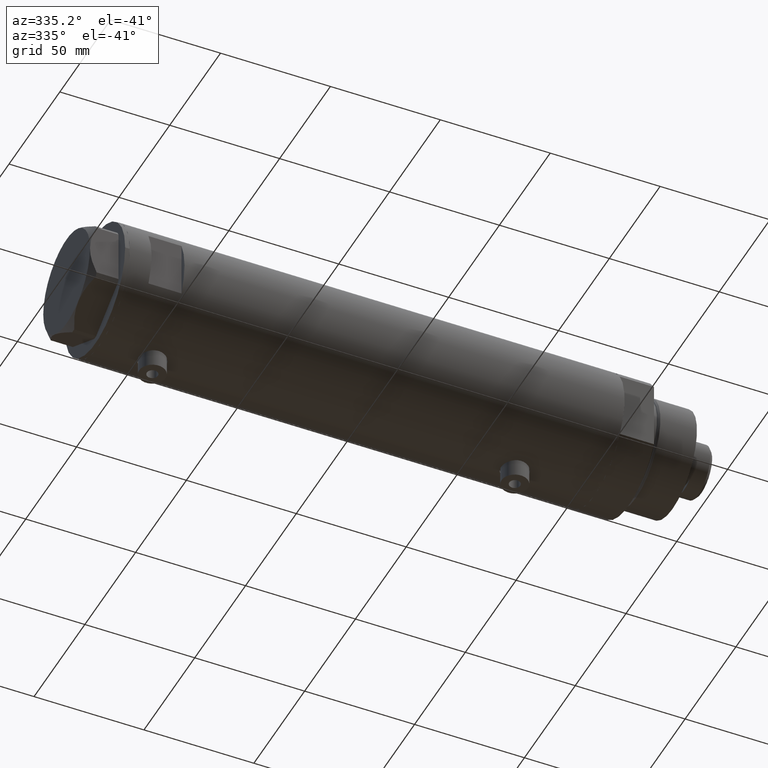
[diagram: clean part render]
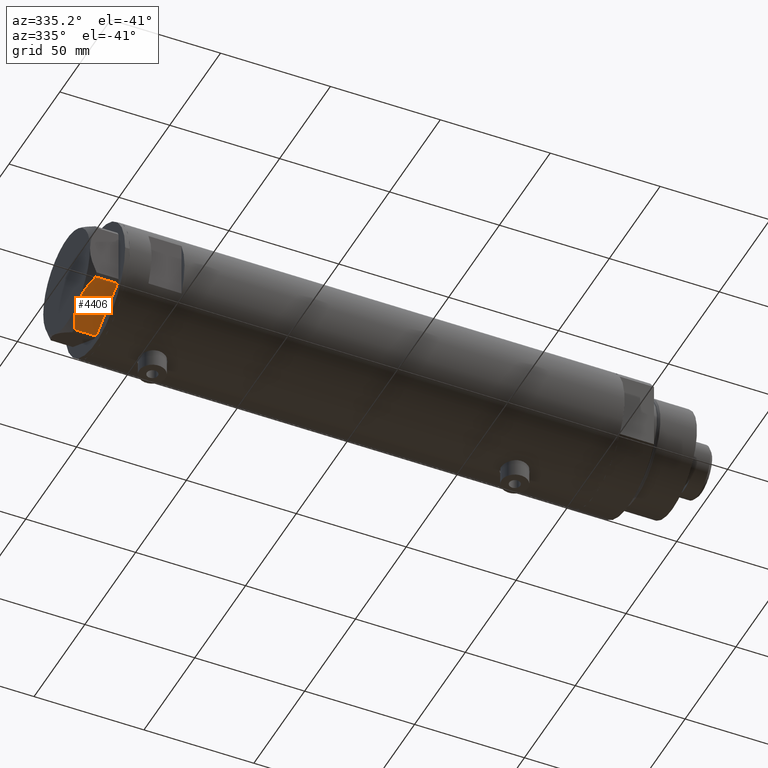
[diagram: same view with one face highlighted and labeled with its STEP entity id]
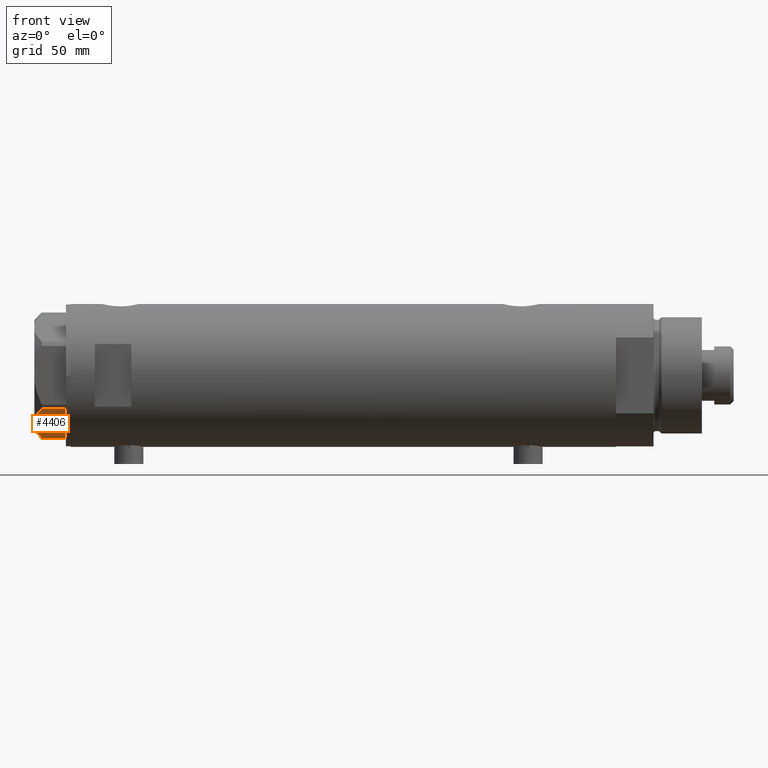
[diagram: same view with one face highlighted and labeled with its STEP entity id]
A machine part, auxiliary view. The second image highlights one B-rep face of the part: STEP entity #4406.
A second angle (front view) of the same face is appended — the face is thin or edge-on in the first view.
In plain terms, the highlighted planar face has unit normal (0, 0.5, 0.866).
Its self-contained STEP definition (entity closure, byte-faithful):
#49 = VECTOR ( 'NONE', #4097, 1000.000000000000227 ) ;
#185 = EDGE_CURVE ( 'NONE', #345, #1494, #1700, .T. ) ;
#214 = CARTESIAN_POINT ( 'NONE',  ( -21.20080365460317751, 14.31782268570117367, 10.43131750950939818 ) ) ;
#289 = CARTESIAN_POINT ( 'NONE',  ( -11.50000000000004441, 19.91858428704211548, 13.00000000000000000 ) ) ;
#345 = VERTEX_POINT ( 'NONE', #1079 ) ;
#451 = CARTESIAN_POINT ( 'NONE',  ( -6.946777556903628970, 22.54738849024396075, 12.42689993760377831 ) ) ;
#653 = PLANE ( 'NONE',  #1686 ) ;
#757 = ORIENTED_EDGE ( 'NONE', *, *, #185, .T. ) ;
#798 = VECTOR ( 'NONE', #4640, 1000.000000000000000 ) ;
#992 = FACE_OUTER_BOUND ( 'NONE', #1090, .T. ) ;
#1079 = CARTESIAN_POINT ( 'NONE',  ( -0.9699484522384476115, 25.99811238272281599, 9.983800287807556018 ) ) ;
#1090 = EDGE_LOOP ( 'NONE', ( #2803, #1878, #4092, #4113, #757 ) ) ;
#1107 = CARTESIAN_POINT ( 'NONE',  ( -10.58093321976963175, 20.44920774001128194, 12.98168640760950510 ) ) ;
#1331 = DIRECTION ( 'NONE',  ( 0.000000000000000000, 0.000000000000000000, 1.000000000000000000 ) ) ;
#1358 = CARTESIAN_POINT ( 'NONE',  ( -15.11535457301031649, 17.83125835109857249, 12.70765172847700519 ) ) ;
#1436 = DIRECTION ( 'NONE',  ( 0.5000000000000008882, -0.8660254037844381525, 0.000000000000000000 ) ) ;
#1452 = VERTEX_POINT ( 'NONE', #3711 ) ;
#1475 = B_SPLINE_CURVE_WITH_KNOTS ( 'NONE', 3,
 ( #1912, #3759, #1483, #451, #1936, #3393, #2577, #1107, #4441, #4053 ),
 .UNSPECIFIED., .F., .F.,
 ( 4, 2, 2, 2, 4 ),
 ( 0.001228959670438532553, 0.007497079744270828371, 0.01063113978118697921, 0.01219816979964505159, 0.01376519981810312397 ),
 .UNSPECIFIED. ) ;
#1483 = CARTESIAN_POINT ( 'NONE',  ( -4.320186229909891651, 24.06385169993495055, 11.62937486882611005 ) ) ;
#1494 = VERTEX_POINT ( 'NONE', #3303 ) ;
#1586 = LINE ( 'NONE', #2616, #49 ) ;
#1686 = AXIS2_PLACEMENT_3D ( 'NONE', #3213, #1436, #4637 ) ;
#1700 = LINE ( 'NONE', #3164, #798 ) ;
#1710 = B_SPLINE_CURVE_WITH_KNOTS ( 'NONE', 3,
 ( #3263, #2462, #1358, #2178, #2821, #4740, #4350, #3961, #214, #3937 ),
 .UNSPECIFIED., .F., .F.,
 ( 4, 2, 2, 2, 4 ),
 ( 0.01376519981810312397, 0.01998941321701587850, 0.02154546656674406757, 0.02310151991647225664, 0.02621362661592864171 ),
 .UNSPECIFIED. ) ;
#1845 = VECTOR ( 'NONE', #1331, 1000.000000000000000 ) ;
#1878 = ORIENTED_EDGE ( 'NONE', *, *, #3342, .T. ) ;
#1912 = CARTESIAN_POINT ( 'NONE',  ( -0.9699484522384476115, 25.99811238272281599, 9.983800287807556018 ) ) ;
#1936 = CARTESIAN_POINT ( 'NONE',  ( -7.836767740116584058, 22.03355241838984924, 12.63731396715694899 ) ) ;
#2178 = CARTESIAN_POINT ( 'NONE',  ( -17.32831362639716843, 16.55360584592005679, 12.04068176582934235 ) ) ;
#2462 = CARTESIAN_POINT ( 'NONE',  ( -13.32175508098984018, 18.86679350063497296, 13.00000000000009237 ) ) ;
#2577 = CARTESIAN_POINT ( 'NONE',  ( -9.656518383329851574, 20.98291889467267879, 12.90784227772844162 ) ) ;
#2616 = CARTESIAN_POINT ( 'NONE',  ( 0.000000000000000000, 26.55811238272274366, 0.000000000000000000 ) ) ;
#2649 = EDGE_CURVE ( 'NONE', #345, #3411, #1475, .T. ) ;
#2803 = ORIENTED_EDGE ( 'NONE', *, *, #3482, .T. ) ;
#2821 = CARTESIAN_POINT ( 'NONE',  ( -17.77001848220189828, 16.29858742851882525, 11.89212886775844424 ) ) ;
#3164 = CARTESIAN_POINT ( 'NONE',  ( -0.9699484522385897201, 25.99811238272273073, 13.00000000000000000 ) ) ;
#3213 = CARTESIAN_POINT ( 'NONE',  ( 0.000000000000000000, 26.55811238272274366, 13.00000000000000000 ) ) ;
#3263 = CARTESIAN_POINT ( 'NONE',  ( -11.50000000000004441, 19.91858428704211548, 13.00000000000000000 ) ) ;
#3303 = CARTESIAN_POINT ( 'NONE',  ( -0.9699484522385893870, 25.99811238272273073, 0.000000000000000000 ) ) ;
#3342 = EDGE_CURVE ( 'NONE', #1452, #3500, #3987, .T. ) ;
#3393 = CARTESIAN_POINT ( 'NONE',  ( -9.197898616902921987, 21.24770314027493612, 12.85271263895580596 ) ) ;
#3411 = VERTEX_POINT ( 'NONE', #289 ) ;
#3482 = EDGE_CURVE ( 'NONE', #1494, #1452, #1586, .T. ) ;
#3500 = VERTEX_POINT ( 'NONE', #4530 ) ;
#3547 = CARTESIAN_POINT ( 'NONE',  ( -22.03005154776142049, 13.83905619136132614, 13.00000000000000000 ) ) ;
#3711 = CARTESIAN_POINT ( 'NONE',  ( -22.03005154776141339, 13.83905619136132792, 0.000000000000000000 ) ) ;
#3759 = CARTESIAN_POINT ( 'NONE',  ( -2.626494320835643048, 25.04170517956326236, 10.87778242614345814 ) ) ;
#3937 = CARTESIAN_POINT ( 'NONE',  ( -22.03005154776142760, 13.83905619136132259, 9.983800287807632401 ) ) ;
#3961 = CARTESIAN_POINT ( 'NONE',  ( -20.35958612119325650, 14.80349985506242838, 10.84420102443839085 ) ) ;
#3987 = LINE ( 'NONE', #3547, #1845 ) ;
#4053 = CARTESIAN_POINT ( 'NONE',  ( -11.50000000000004441, 19.91858428704211548, 13.00000000000000000 ) ) ;
#4092 = ORIENTED_EDGE ( 'NONE', *, *, #4429, .F. ) ;
#4097 = DIRECTION ( 'NONE',  ( -0.8660254037844380415, -0.5000000000000008882, 0.000000000000000000 ) ) ;
#4113 = ORIENTED_EDGE ( 'NONE', *, *, #2649, .F. ) ;
#4350 = CARTESIAN_POINT ( 'NONE',  ( -19.07486218896993790, 15.54523556316591915, 11.39727285399141898 ) ) ;
#4406 = ADVANCED_FACE ( 'NONE', ( #992 ), #653, .F. ) ;
#4429 = EDGE_CURVE ( 'NONE', #3411, #3500, #1710, .T. ) ;
#4441 = CARTESIAN_POINT ( 'NONE',  ( -11.04134848610939557, 20.18338686205100885, 13.00000000000010125 ) ) ;
#4530 = CARTESIAN_POINT ( 'NONE',  ( -22.03005154776142760, 13.83905619136132259, 9.983800287807632401 ) ) ;
#4637 = DIRECTION ( 'NONE',  ( 0.8660254037844381525, 0.5000000000000008882, 0.000000000000000000 ) ) ;
#4640 = DIRECTION ( 'NONE',  ( 0.000000000000000000, 0.000000000000000000, -1.000000000000000000 ) ) ;
#4740 = CARTESIAN_POINT ( 'NONE',  ( -18.64279229058393739, 15.79469123530780372, 11.57055225522972286 ) ) ;